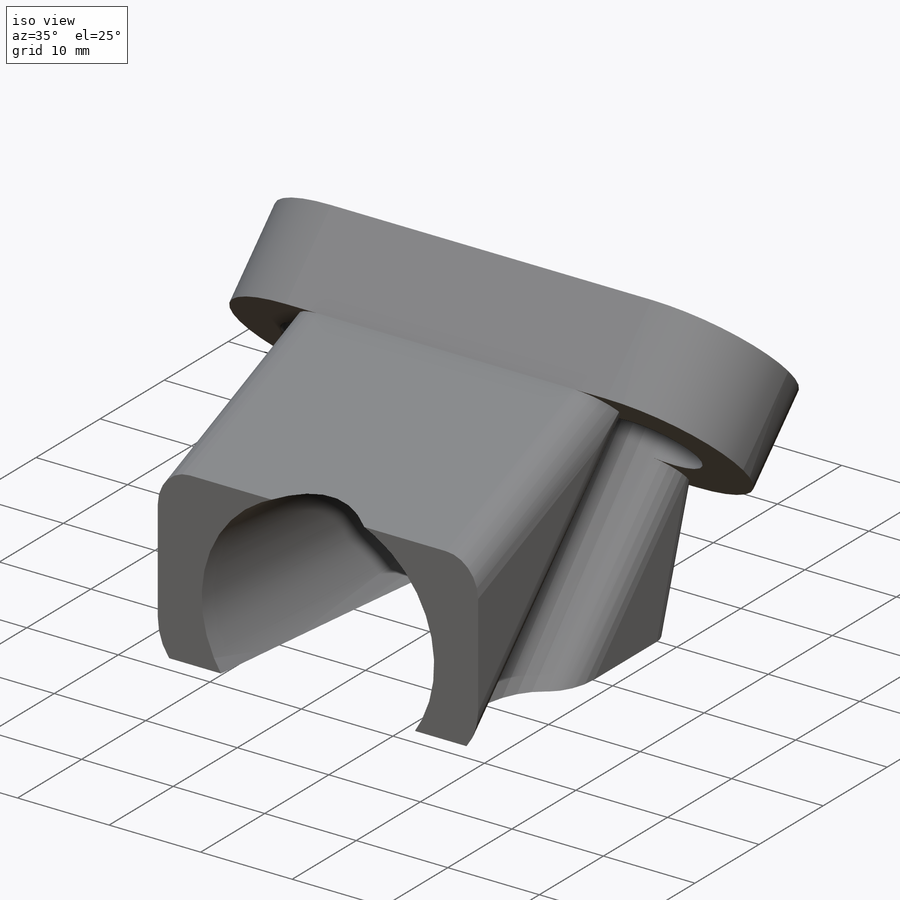
[diagram: iso view]
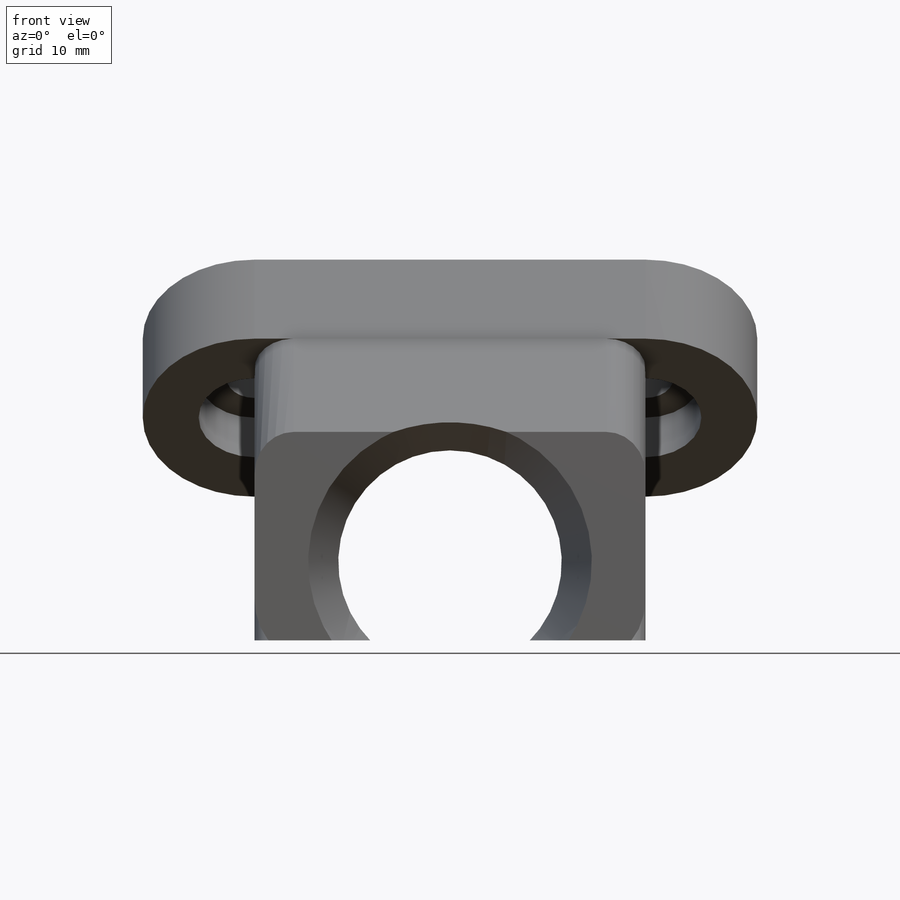
[diagram: front view]
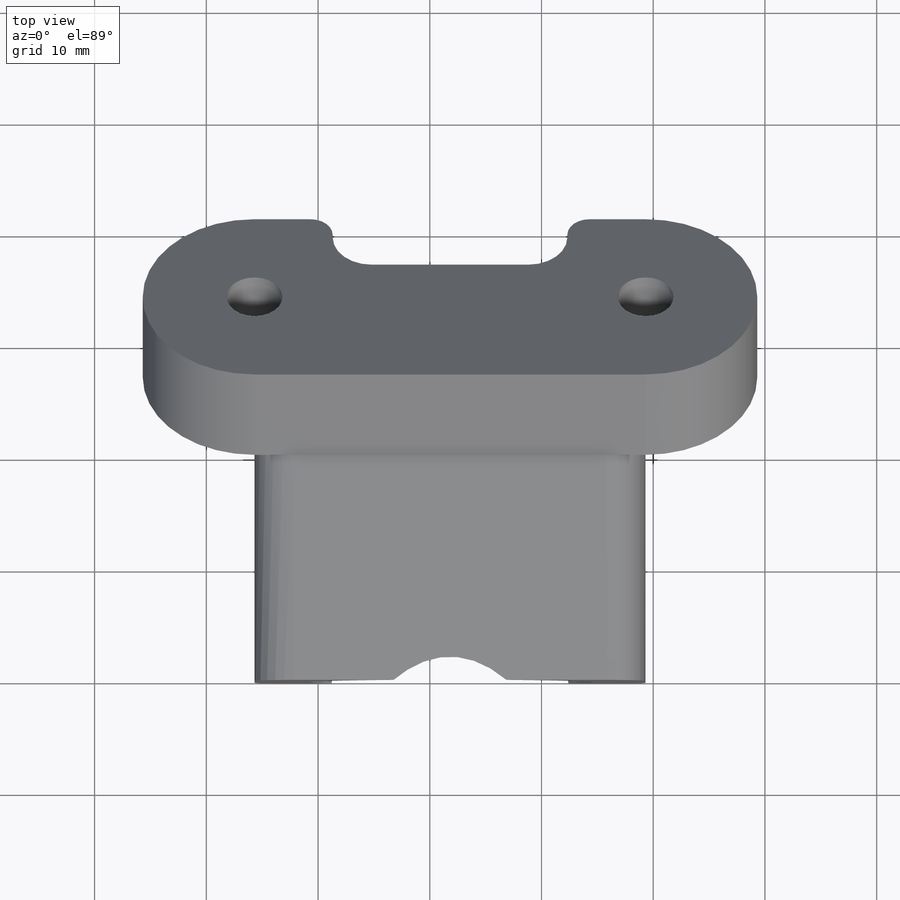
[diagram: top view]
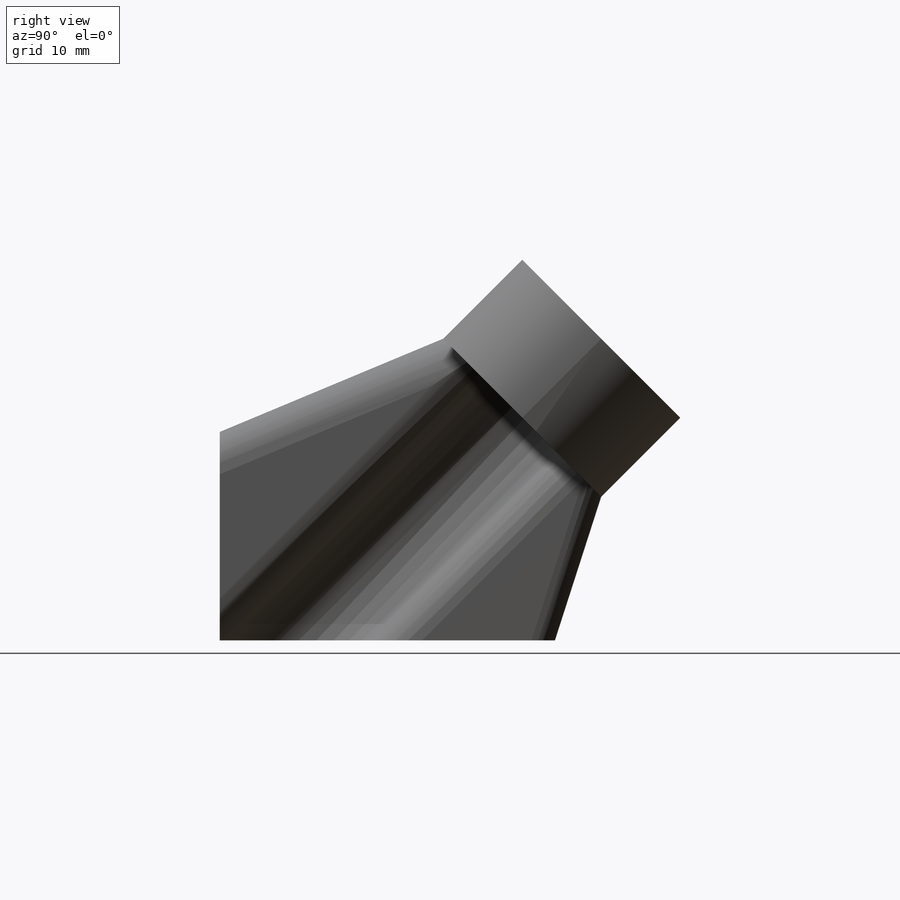
[diagram: right view]
SOLIDWORKS PART (.sldprt)
format: sldprt  version: not decoded by parser v0  size: 391,168 bytes
history: native  units: mm
features: sketch x13, cut_extrude x7, fillet x5, extrude x4, plane x3, material x1 (+9 scaffold rows collapsed)
feature tree (42):
  scaffold x9  (default folders/planes/origin — collapsed)
  material  "Matériau <non spécifié>"
  plane  "Plan de face"
  plane  "Plan de dessus"
  plane  "Plan de droite"
  sketch  "Esquisse1"  dims[D1=55.0mm D2=40.0mm]
  extrude  "Boss.-Extru.4"  Depth=30mm
  sketch  "Esquisse8"  dims[c1.D1=25.0mm c1.D2=25.0mm c1.D3=13.0mm c2.D1=27.5mm c2.D2=20.0mm c2.D3=22.5mm]
  sketch  "Esquisse9"  dims[c1.D1=20.0mm c1.D2=20.0mm c2.D1=20.0mm c2.D2=27.5mm]
  sketch  "Esquisse10"  dims[D1=13.0mm]
  cut_extrude  "Enlèv. mat.-Extru.4"  [1 undecoded]
  sketch  "Esquisse11"  dims[D1=10.0mm]
  cut_extrude  "Enlèv. mat.-Extru.8"  [1 undecoded]
  sketch  "Esquisse15"  dims[D1=20.0mm]
  extrude  "Boss.-Extru.8"  Depth=17mm
  sketch  "Esquisse16"  dims[D1=20.0mm]
  extrude  "Boss.-Extru.9"  Depth=17mm
  sketch  "Esquisse18"
  extrude  "Boss.-Extru.10"  Depth=10mm
  sketch  "Esquisse19"  dims[c1.D1=5.0mm c1.D2=5.0mm c1.D3=5.0mm c1.D4=5.0mm c2.D1=10.0mm c2.D2=10.0mm c2.D3=10.0mm c2.D4=10.0mm]
  cut_extrude  "Enlèv. mat.-Extru.9"  [1 undecoded]
  sketch  "Esquisse20"  dims[D1=~5.097151mm]
  cut_extrude  "Enlèv. mat.-Extru.10"  Depth=5mm
  sketch  "Esquisse21"
  cut_extrude  "Enlèv. mat.-Extru.11"  Depth=10mm
  sketch  "Esquisse22"
  cut_extrude  "Enlèv. mat.-Extru.12"  Depth=10mm
  sketch  "Esquisse23"
  cut_extrude  "Enlèv. mat.-Extru.13"  Depth=35mm
  fillet  "Congé1"  Radius=10mm
  fillet  "Congé2"  Radius=2mm
  fillet  "Congé3"  Radius=3.5mm
  fillet  "Congé4"  Radius=3.5mm
  fillet  "Congé5"  Radius=3.5mm
decode coverage: 22 of 29 modeling features carry decoded parameters
note: ~ marks probable driven/reference dimensions
note: 3 parameter values undecoded
summary: no parameter record found for 3 features
note: suppression state not decoded; provenance and decode notes live in map.json
